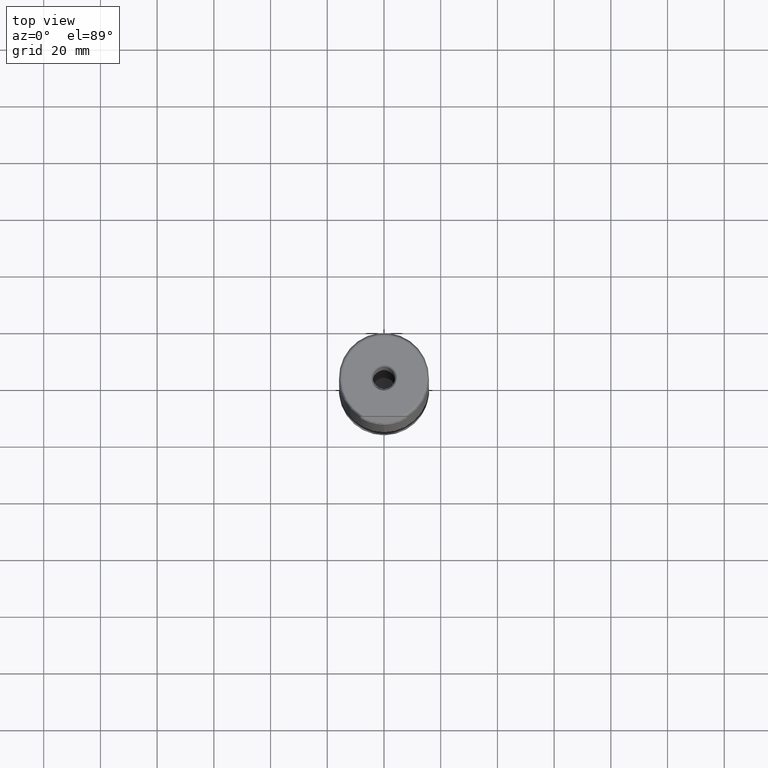
[diagram: clean part render]
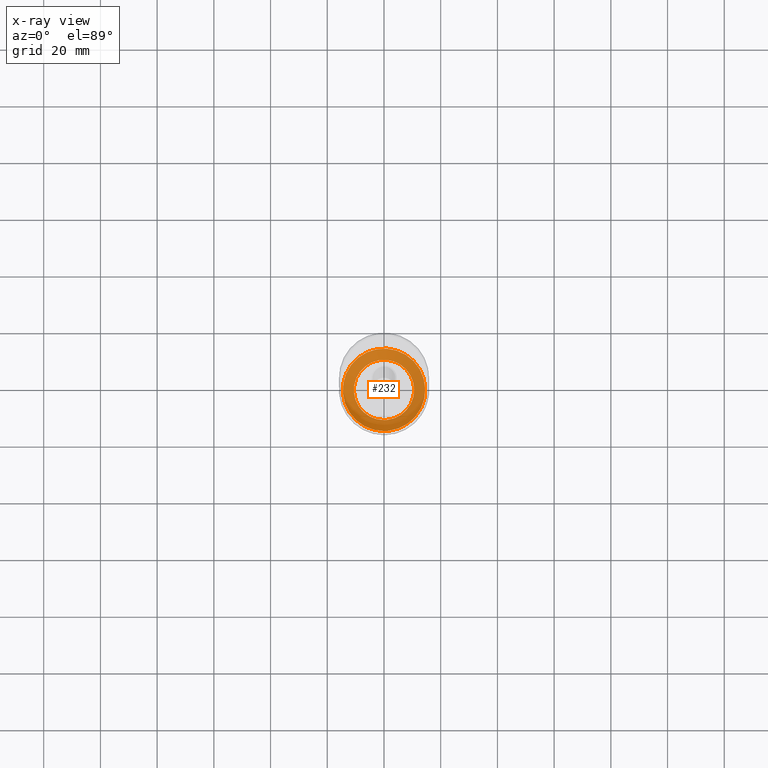
[diagram: x-ray — body ghosted, one internal face saturated and labeled with its STEP entity id]
A machine part, top view, then the same camera in x-ray: the body is ghosted and one INTERNAL B-rep face — a face not visible from any outside direction — is saturated and labeled: STEP entity #232.
In plain terms, the highlighted face is a SurfaceOfRevolution surface.
Its self-contained STEP definition (entity closure, byte-faithful):
#123=SURFACE_OF_REVOLUTION('',#806,#144);
#144=AXIS1_PLACEMENT('',#1636,#1062);
#232=ADVANCED_FACE('',(#357,#358),#123,.F.);
#282=CIRCLE('',#880,10.642024938582);
#283=CIRCLE('',#881,14.5373371560277);
#357=FACE_BOUND('',#447,.T.);
#358=FACE_BOUND('',#448,.T.);
#447=EDGE_LOOP('',(#624));
#448=EDGE_LOOP('',(#625));
#624=ORIENTED_EDGE('',*,*,#758,.T.);
#625=ORIENTED_EDGE('',*,*,#759,.F.);
#690=VERTEX_POINT('',#1615);
#691=VERTEX_POINT('',#1623);
#758=EDGE_CURVE('',#690,#690,#282,.T.);
#759=EDGE_CURVE('',#691,#691,#283,.T.);
#806=B_SPLINE_CURVE_WITH_KNOTS('',3,(#1624,#1625,#1626,#1627,#1628,#1629,
#1630,#1631,#1632,#1633,#1634,#1635),.UNSPECIFIED.,.F.,.F.,(4,1,1,1,1,1,
1,1,1,4),(0.,0.0557572126970923,0.0918984441691398,0.128039675641187,0.200322138585282,
0.344887064473473,0.489451990361663,0.634016916249853,0.778581842138043,
1.),.UNSPECIFIED.);
#880=AXIS2_PLACEMENT_3D('',#1614,#1057,#1058);
#881=AXIS2_PLACEMENT_3D('',#1622,#1060,#1061);
#1057=DIRECTION('',(0.,1.17145536458252E-15,1.));
#1058=DIRECTION('',(0.,-1.,1.14104828751281E-15));
#1060=DIRECTION('',(0.,1.17145536458252E-15,1.));
#1061=DIRECTION('',(0.,-1.,1.1932883287759E-15));
#1062=DIRECTION('',(0.,1.17145536458252E-15,1.));
#1614=CARTESIAN_POINT('',(0.,6.04188048418002E-15,5.15758488701206));
#1615=CARTESIAN_POINT('',(0.,-10.642024938582,5.15758488701207));
#1622=CARTESIAN_POINT('',(0.,8.56752980228249E-15,7.31357767552307));
#1623=CARTESIAN_POINT('',(0.,-14.5373371560276,7.31357767552309));
#1624=CARTESIAN_POINT('',(14.5078860875948,-0.9248818141753,7.31357705267591));
#1625=CARTESIAN_POINT('',(14.4347719418756,-0.934883640300702,7.27549485881508));
#1626=CARTESIAN_POINT('',(14.3141725996713,-0.949861971997271,7.21265894267934));
#1627=CARTESIAN_POINT('',(14.1450573252212,-0.947216236692904,7.12450532422349));
#1628=CARTESIAN_POINT('',(13.9544307605655,-0.946164212227024,7.02481928709789));
#1629=CARTESIAN_POINT('',(13.6211034366027,-0.943530517952568,6.84978117007267));
#1630=CARTESIAN_POINT('',(13.1456681081808,-0.940403193327161,6.59831496829404));
#1631=CARTESIAN_POINT('',(12.5770987413792,-0.937178871461724,6.29288902407682));
#1632=CARTESIAN_POINT('',(12.0121400652313,-0.935102041096716,5.9808361392813));
#1633=CARTESIAN_POINT('',(11.352046430096,-0.934204854082357,5.6046109545743));
#1634=CARTESIAN_POINT('',(10.8832600560514,-0.934899882970591,5.32729661187756));
#1635=CARTESIAN_POINT('',(10.6008125652069,-0.935664336582891,5.15758488701206));
#1636=CARTESIAN_POINT('',(0.,0.,0.));